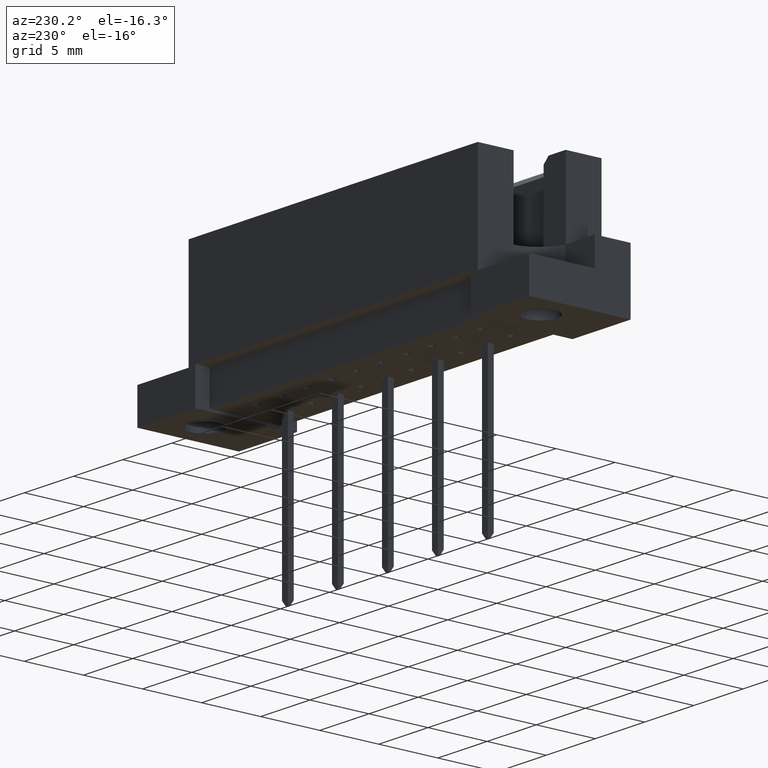
[diagram: clean part render]
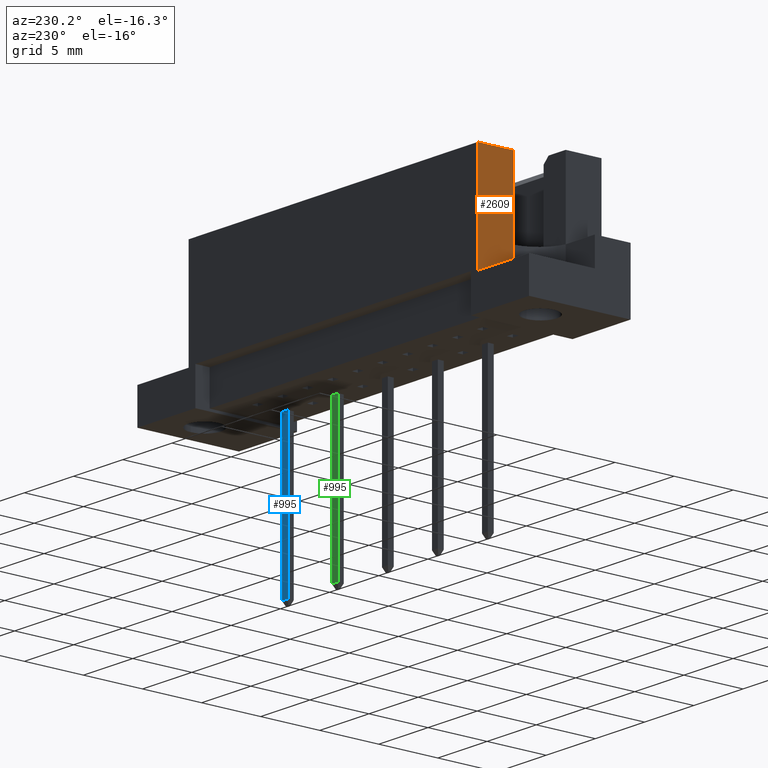
[diagram: same view with three faces highlighted in distinct colors, each labeled with its STEP entity id]
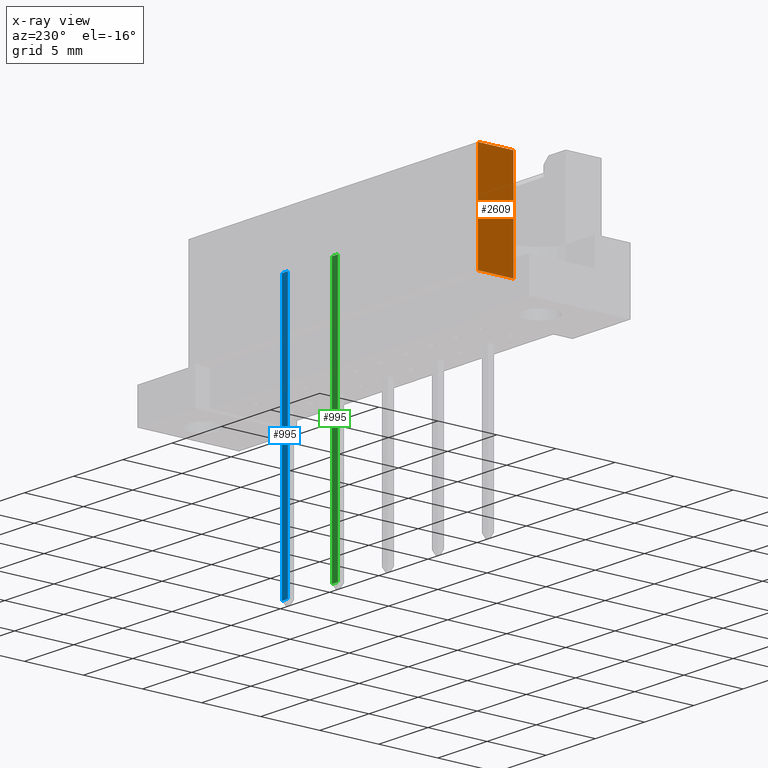
[diagram: x-ray of the same camera — body ghosted, the three highlighted faces saturated]
A machine part, auxiliary view with three faces highlighted in distinct colors.
The next image is the same camera in x-ray (body ghosted, the three faces saturated) — at least one of them is partly hidden behind the body in this view.
Their STEP definitions:

[orange] entity #2609 — the highlighted planar face has unit normal (1, 0, 0).
#7 = DIRECTION ( 'NONE',  ( -0.0000000000000000000, -0.0000000000000000000, -1.000000000000000000 ) ) ;
#26 = CARTESIAN_POINT ( 'NONE',  ( -14.68999999999999773, 4.299999999999996270, 2.899999999999999911 ) ) ;
#154 = VECTOR ( 'NONE', #1050, 1000.000000000000000 ) ;
#167 = ORIENTED_EDGE ( 'NONE', *, *, #1400, .F. ) ;
#195 = LINE ( 'NONE', #3312, #154 ) ;
#277 = VECTOR ( 'NONE', #7, 1000.000000000000000 ) ;
#311 = EDGE_CURVE ( 'NONE', #4221, #3810, #195, .T. ) ;
#408 = CARTESIAN_POINT ( 'NONE',  ( -14.68999999999999773, 1.270000000000030216, 19.22686042877410628 ) ) ;
#496 = ORIENTED_EDGE ( 'NONE', *, *, #1599, .T. ) ;
#1050 = DIRECTION ( 'NONE',  ( 0.0000000000000000000, 1.000000000000000000, 0.0000000000000000000 ) ) ;
#1156 = VERTEX_POINT ( 'NONE', #4291 ) ;
#1248 = CARTESIAN_POINT ( 'NONE',  ( -14.68999999999999773, 4.299999999999996270, 19.22686042877410628 ) ) ;
#1296 = CARTESIAN_POINT ( 'NONE',  ( -14.68999999999999773, 4.299999999999996270, 19.22686042877410628 ) ) ;
#1353 = VERTEX_POINT ( 'NONE', #2187 ) ;
#1400 = EDGE_CURVE ( 'NONE', #3234, #1353, #2334, .T. ) ;
#1431 = LINE ( 'NONE', #4501, #3920 ) ;
#1562 = CARTESIAN_POINT ( 'NONE',  ( -14.68999999999999773, 1.270000000000030216, 11.59999999999999964 ) ) ;
#1599 = EDGE_CURVE ( 'NONE', #1156, #1353, #4591, .T. ) ;
#1617 = DIRECTION ( 'NONE',  ( -0.0000000000000000000, -0.0000000000000000000, -1.000000000000000000 ) ) ;
#2187 = CARTESIAN_POINT ( 'NONE',  ( -14.68999999999999773, 1.270000000000030216, 2.899999999999999911 ) ) ;
#2334 = LINE ( 'NONE', #408, #277 ) ;
#2383 = ORIENTED_EDGE ( 'NONE', *, *, #2846, .F. ) ;
#2609 = ADVANCED_FACE ( 'NONE', ( #4047 ), #4370, .F. ) ;
#2749 = DIRECTION ( 'NONE',  ( -0.0000000000000000000, -0.0000000000000000000, -1.000000000000000000 ) ) ;
#2846 = EDGE_CURVE ( 'NONE', #4221, #3234, #1431, .T. ) ;
#3031 = VECTOR ( 'NONE', #2749, 1000.000000000000000 ) ;
#3162 = ORIENTED_EDGE ( 'NONE', *, *, #4249, .T. ) ;
#3234 = VERTEX_POINT ( 'NONE', #4813 ) ;
#3269 = AXIS2_PLACEMENT_3D ( 'NONE', #1296, #3996, #4333 ) ;
#3312 = CARTESIAN_POINT ( 'NONE',  ( -14.68999999999999773, 4.299999999999996270, 11.59999999999999964 ) ) ;
#3342 = VECTOR ( 'NONE', #3446, 1000.000000000000000 ) ;
#3446 = DIRECTION ( 'NONE',  ( 0.0000000000000000000, -1.000000000000000000, 0.0000000000000000000 ) ) ;
#3810 = VERTEX_POINT ( 'NONE', #4530 ) ;
#3920 = VECTOR ( 'NONE', #1617, 1000.000000000000000 ) ;
#3996 = DIRECTION ( 'NONE',  ( 1.000000000000000000, 0.0000000000000000000, -0.0000000000000000000 ) ) ;
#4047 = FACE_OUTER_BOUND ( 'NONE', #4683, .T. ) ;
#4221 = VERTEX_POINT ( 'NONE', #1562 ) ;
#4249 = EDGE_CURVE ( 'NONE', #3810, #1156, #4695, .T. ) ;
#4291 = CARTESIAN_POINT ( 'NONE',  ( -14.68999999999999773, 4.299999999999996270, 2.899999999999999911 ) ) ;
#4333 = DIRECTION ( 'NONE',  ( -0.0000000000000000000, 0.0000000000000000000, -1.000000000000000000 ) ) ;
#4340 = ORIENTED_EDGE ( 'NONE', *, *, #311, .T. ) ;
#4370 = PLANE ( 'NONE',  #3269 ) ;
#4501 = CARTESIAN_POINT ( 'NONE',  ( -14.68999999999999773, 1.270000000000030216, 19.22686042877410628 ) ) ;
#4530 = CARTESIAN_POINT ( 'NONE',  ( -14.68999999999999773, 4.299999999999996270, 11.59999999999999964 ) ) ;
#4591 = LINE ( 'NONE', #26, #3342 ) ;
#4683 = EDGE_LOOP ( 'NONE', ( #4340, #3162, #496, #167, #2383 ) ) ;
#4695 = LINE ( 'NONE', #1248, #3031 ) ;
#4813 = CARTESIAN_POINT ( 'NONE',  ( -14.68999999999999773, 1.270000000000030216, 5.199999999999999289 ) ) ;

[blue] entity #995 — the highlighted planar face has unit normal (0, -1, -0).
#41 = EDGE_LOOP ( 'NONE', ( #1497, #4054, #2994, #4028 ) ) ;
#357 = LINE ( 'NONE', #416, #2012 ) ;
#416 = CARTESIAN_POINT ( 'NONE',  ( 22.59999999999999432, 0.4999999999999785172, -0.6000000000007006395 ) ) ;
#558 = DIRECTION ( 'NONE',  ( 1.068849301058006009E-27, -1.000000000000000000, 9.583180884238004039E-28 ) ) ;
#758 = VERTEX_POINT ( 'NONE', #4677 ) ;
#884 = DIRECTION ( 'NONE',  ( -1.000000000000000000, 1.068849301058018923E-27, 4.713922487888855606E-18 ) ) ;
#953 = CARTESIAN_POINT ( 'NONE',  ( 22.59999999999999432, 0.5000000000000015543, -6.591949208711866959E-13 ) ) ;
#995 = ADVANCED_FACE ( 'NONE', ( #3602 ), #4357, .F. ) ;
#1098 = VECTOR ( 'NONE', #884, 1000.000000000000000 ) ;
#1322 = VERTEX_POINT ( 'NONE', #3392 ) ;
#1373 = LINE ( 'NONE', #3714, #3839 ) ;
#1497 = ORIENTED_EDGE ( 'NONE', *, *, #2085, .T. ) ;
#1659 = CARTESIAN_POINT ( 'NONE',  ( 0.3999999999999975797, 0.4999999999999785172, -0.6000000000000033085 ) ) ;
#1675 = VERTEX_POINT ( 'NONE', #953 ) ;
#1743 = VERTEX_POINT ( 'NONE', #1659 ) ;
#2012 = VECTOR ( 'NONE', #3805, 1000.000000000000000 ) ;
#2085 = EDGE_CURVE ( 'NONE', #758, #1675, #4750, .T. ) ;
#2482 = CARTESIAN_POINT ( 'NONE',  ( 0.0000000000000000000, 0.4999999999999785172, -0.6000000000000033085 ) ) ;
#2914 = DIRECTION ( 'NONE',  ( 1.178558192400191637E-27, 9.583180884238004039E-28, 1.000000000000000000 ) ) ;
#2994 = ORIENTED_EDGE ( 'NONE', *, *, #4325, .T. ) ;
#3188 = VECTOR ( 'NONE', #3273, 1000.000000000000000 ) ;
#3243 = EDGE_CURVE ( 'NONE', #1743, #758, #1373, .T. ) ;
#3273 = DIRECTION ( 'NONE',  ( 1.000000000000000000, -1.068849301057980001E-27, 1.178558192400191637E-27 ) ) ;
#3392 = CARTESIAN_POINT ( 'NONE',  ( 22.59999999999999432, 0.4999999999999785172, -0.6000000000007006395 ) ) ;
#3450 = CARTESIAN_POINT ( 'NONE',  ( 0.0000000000000000000, 0.4999999999999785172, -0.6000000000000033085 ) ) ;
#3602 = FACE_OUTER_BOUND ( 'NONE', #41, .T. ) ;
#3626 = DIRECTION ( 'NONE',  ( -1.178558192400191637E-27, -9.583180884238004039E-28, -1.000000000000000000 ) ) ;
#3714 = CARTESIAN_POINT ( 'NONE',  ( 0.3999999999999975797, 0.4999999999999785172, -0.6000000000000033085 ) ) ;
#3793 = EDGE_CURVE ( 'NONE', #1675, #1322, #357, .T. ) ;
#3805 = DIRECTION ( 'NONE',  ( -1.178558192400191637E-27, -9.583180884238004039E-28, -1.000000000000000000 ) ) ;
#3839 = VECTOR ( 'NONE', #2914, 1000.000000000000000 ) ;
#3995 = AXIS2_PLACEMENT_3D ( 'NONE', #2482, #558, #3626 ) ;
#4028 = ORIENTED_EDGE ( 'NONE', *, *, #3243, .T. ) ;
#4054 = ORIENTED_EDGE ( 'NONE', *, *, #3793, .T. ) ;
#4325 = EDGE_CURVE ( 'NONE', #1322, #1743, #4326, .T. ) ;
#4326 = LINE ( 'NONE', #3450, #1098 ) ;
#4357 = PLANE ( 'NONE',  #3995 ) ;
#4677 = CARTESIAN_POINT ( 'NONE',  ( 0.3999999999999975797, 0.5000000000000015543, 0.0000000000000000000 ) ) ;
#4750 = LINE ( 'NONE', #4820, #3188 ) ;
#4820 = CARTESIAN_POINT ( 'NONE',  ( 0.0000000000000000000, 0.5000000000000015543, 0.0000000000000000000 ) ) ;

[green] entity #995 — the highlighted planar face has unit normal (0, -1, -0).
#41 = EDGE_LOOP ( 'NONE', ( #1497, #4054, #2994, #4028 ) ) ;
#357 = LINE ( 'NONE', #416, #2012 ) ;
#416 = CARTESIAN_POINT ( 'NONE',  ( 22.59999999999999432, 0.4999999999999785172, -0.6000000000007006395 ) ) ;
#558 = DIRECTION ( 'NONE',  ( 1.068849301058006009E-27, -1.000000000000000000, 9.583180884238004039E-28 ) ) ;
#758 = VERTEX_POINT ( 'NONE', #4677 ) ;
#884 = DIRECTION ( 'NONE',  ( -1.000000000000000000, 1.068849301058018923E-27, 4.713922487888855606E-18 ) ) ;
#953 = CARTESIAN_POINT ( 'NONE',  ( 22.59999999999999432, 0.5000000000000015543, -6.591949208711866959E-13 ) ) ;
#995 = ADVANCED_FACE ( 'NONE', ( #3602 ), #4357, .F. ) ;
#1098 = VECTOR ( 'NONE', #884, 1000.000000000000000 ) ;
#1322 = VERTEX_POINT ( 'NONE', #3392 ) ;
#1373 = LINE ( 'NONE', #3714, #3839 ) ;
#1497 = ORIENTED_EDGE ( 'NONE', *, *, #2085, .T. ) ;
#1659 = CARTESIAN_POINT ( 'NONE',  ( 0.3999999999999975797, 0.4999999999999785172, -0.6000000000000033085 ) ) ;
#1675 = VERTEX_POINT ( 'NONE', #953 ) ;
#1743 = VERTEX_POINT ( 'NONE', #1659 ) ;
#2012 = VECTOR ( 'NONE', #3805, 1000.000000000000000 ) ;
#2085 = EDGE_CURVE ( 'NONE', #758, #1675, #4750, .T. ) ;
#2482 = CARTESIAN_POINT ( 'NONE',  ( 0.0000000000000000000, 0.4999999999999785172, -0.6000000000000033085 ) ) ;
#2914 = DIRECTION ( 'NONE',  ( 1.178558192400191637E-27, 9.583180884238004039E-28, 1.000000000000000000 ) ) ;
#2994 = ORIENTED_EDGE ( 'NONE', *, *, #4325, .T. ) ;
#3188 = VECTOR ( 'NONE', #3273, 1000.000000000000000 ) ;
#3243 = EDGE_CURVE ( 'NONE', #1743, #758, #1373, .T. ) ;
#3273 = DIRECTION ( 'NONE',  ( 1.000000000000000000, -1.068849301057980001E-27, 1.178558192400191637E-27 ) ) ;
#3392 = CARTESIAN_POINT ( 'NONE',  ( 22.59999999999999432, 0.4999999999999785172, -0.6000000000007006395 ) ) ;
#3450 = CARTESIAN_POINT ( 'NONE',  ( 0.0000000000000000000, 0.4999999999999785172, -0.6000000000000033085 ) ) ;
#3602 = FACE_OUTER_BOUND ( 'NONE', #41, .T. ) ;
#3626 = DIRECTION ( 'NONE',  ( -1.178558192400191637E-27, -9.583180884238004039E-28, -1.000000000000000000 ) ) ;
#3714 = CARTESIAN_POINT ( 'NONE',  ( 0.3999999999999975797, 0.4999999999999785172, -0.6000000000000033085 ) ) ;
#3793 = EDGE_CURVE ( 'NONE', #1675, #1322, #357, .T. ) ;
#3805 = DIRECTION ( 'NONE',  ( -1.178558192400191637E-27, -9.583180884238004039E-28, -1.000000000000000000 ) ) ;
#3839 = VECTOR ( 'NONE', #2914, 1000.000000000000000 ) ;
#3995 = AXIS2_PLACEMENT_3D ( 'NONE', #2482, #558, #3626 ) ;
#4028 = ORIENTED_EDGE ( 'NONE', *, *, #3243, .T. ) ;
#4054 = ORIENTED_EDGE ( 'NONE', *, *, #3793, .T. ) ;
#4325 = EDGE_CURVE ( 'NONE', #1322, #1743, #4326, .T. ) ;
#4326 = LINE ( 'NONE', #3450, #1098 ) ;
#4357 = PLANE ( 'NONE',  #3995 ) ;
#4677 = CARTESIAN_POINT ( 'NONE',  ( 0.3999999999999975797, 0.5000000000000015543, 0.0000000000000000000 ) ) ;
#4750 = LINE ( 'NONE', #4820, #3188 ) ;
#4820 = CARTESIAN_POINT ( 'NONE',  ( 0.0000000000000000000, 0.5000000000000015543, 0.0000000000000000000 ) ) ;